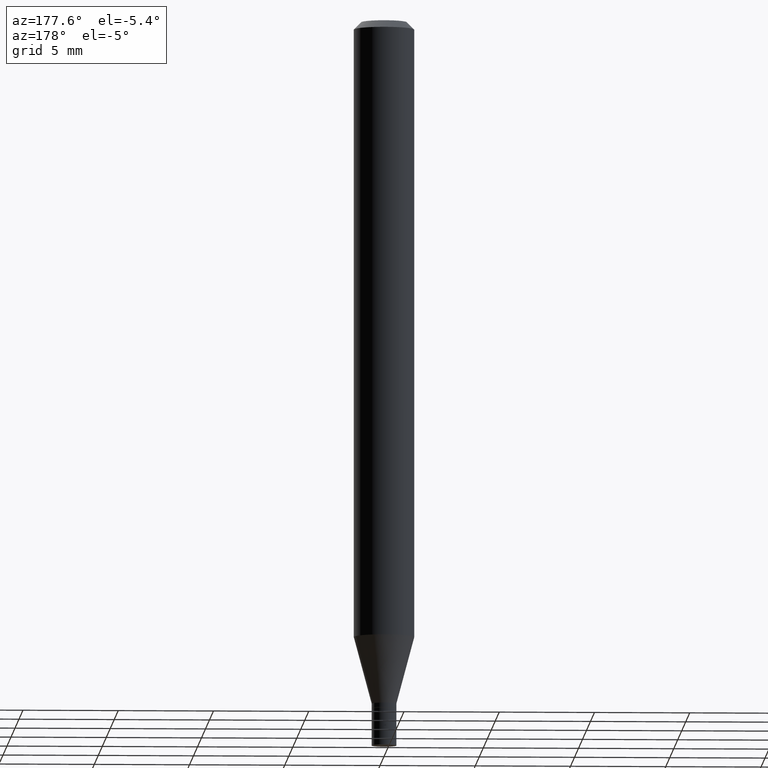
[diagram: clean part render]
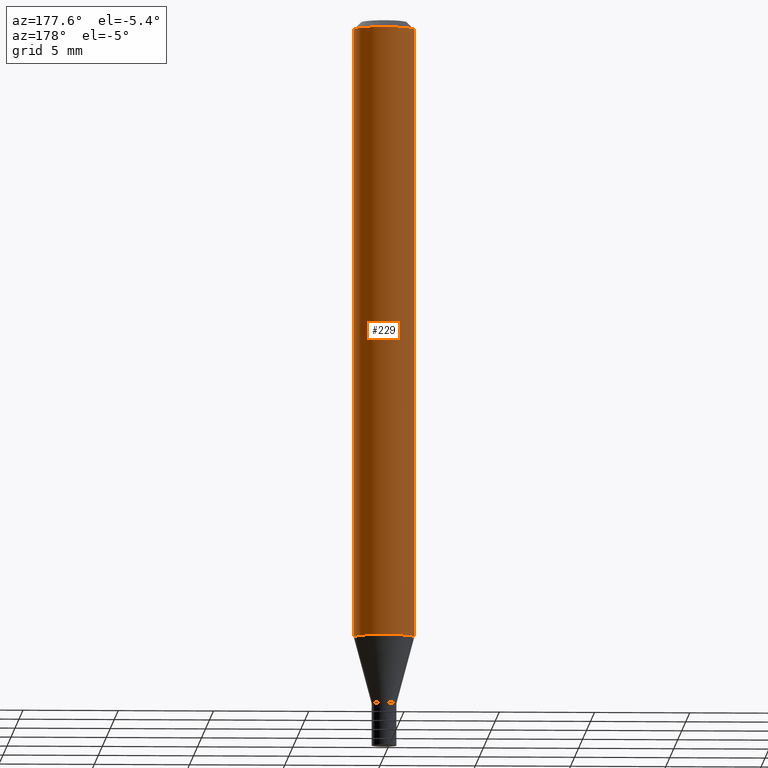
[diagram: same view with one face highlighted and labeled with its STEP entity id]
A machine part, auxiliary view. The second image highlights one B-rep face of the part: STEP entity #229.
In plain terms, the highlighted cylindrical surface (edge-blend (fillet) strip) has radius 1.5875 mm, axis along (-0, 0, 1).
Its self-contained STEP definition (entity closure, byte-faithful):
#15 = VERTEX_POINT ( 'NONE', #395 ) ;
#22 = CARTESIAN_POINT ( 'NONE',  ( 0.06250000000000000000, -4.887774026381831286E-15, -1.274914120119951644 ) ) ;
#45 = FACE_OUTER_BOUND ( 'NONE', #271, .T. ) ;
#71 = DIRECTION ( 'NONE',  ( 1.000000000000000000, -6.982962677686266711E-15, 0.000000000000000000 ) ) ;
#76 = DIRECTION ( 'NONE',  ( 1.000000000000000000, -6.982962677686266711E-15, 4.876176775795935793E-29 ) ) ;
#82 = DIRECTION ( 'NONE',  ( -2.445468806185136877E-29, 3.491481338843145188E-15, 1.000000000000000000 ) ) ;
#111 = CARTESIAN_POINT ( 'NONE',  ( 3.668203209277705088E-31, -5.237222008264718399E-17, -0.01499999999999999944 ) ) ;
#112 = CARTESIAN_POINT ( 'NONE',  ( 0.06250000000000000000, -4.364351673553916694E-16, 3.047610484872459871E-30 ) ) ;
#133 = VECTOR ( 'NONE', #297, 39.37007874015748143 ) ;
#150 = DIRECTION ( 'NONE',  ( -2.445468806185136597E-29, 3.491481338843145583E-15, 1.000000000000000000 ) ) ;
#154 = CARTESIAN_POINT ( 'NONE',  ( -0.06250000000000000000, -4.007249649176377790E-15, -1.274914120119951644 ) ) ;
#157 = DIRECTION ( 'NONE',  ( -2.445468806185136597E-29, 3.491481338843145583E-15, 1.000000000000000000 ) ) ;
#176 = CIRCLE ( 'NONE', #456, 0.06250000000000000000 ) ;
#184 = LINE ( 'NONE', #112, #133 ) ;
#198 = CARTESIAN_POINT ( 'NONE',  ( -0.06250000000000000000, 4.440892098500626162E-16, -3.074334431409316114E-30 ) ) ;
#215 = AXIS2_PLACEMENT_3D ( 'NONE', #111, #157, #71 ) ;
#219 = ORIENTED_EDGE ( 'NONE', *, *, #243, .T. ) ;
#229 = ADVANCED_FACE ( 'NONE', ( #45 ), #270, .T. ) ;
#234 = LINE ( 'NONE', #198, #349 ) ;
#239 = CARTESIAN_POINT ( 'NONE',  ( -0.06250000000000000000, -1.807766329704480929E-15, -0.01499999999999999944 ) ) ;
#240 = ORIENTED_EDGE ( 'NONE', *, *, #442, .T. ) ;
#243 = EDGE_CURVE ( 'NONE', #269, #439, #234, .T. ) ;
#269 = VERTEX_POINT ( 'NONE', #154 ) ;
#270 = CYLINDRICAL_SURFACE ( 'NONE', #368, 0.06250000000000000000 ) ;
#271 = EDGE_LOOP ( 'NONE', ( #240, #219, #402, #381 ) ) ;
#272 = DIRECTION ( 'NONE',  ( 1.000000000000000000, -6.982962677686262766E-15, 0.000000000000000000 ) ) ;
#279 = EDGE_CURVE ( 'NONE', #444, #15, #184, .T. ) ;
#295 = EDGE_CURVE ( 'NONE', #15, #439, #326, .T. ) ;
#297 = DIRECTION ( 'NONE',  ( -2.445468806185136877E-29, 3.491481338843145188E-15, 1.000000000000000000 ) ) ;
#316 = DIRECTION ( 'NONE',  ( -2.445468806185136597E-29, 3.491481338843145583E-15, 1.000000000000000000 ) ) ;
#326 = CIRCLE ( 'NONE', #215, 0.06250000000000000000 ) ;
#349 = VECTOR ( 'NONE', #82, 39.37007874015748143 ) ;
#367 = CARTESIAN_POINT ( 'NONE',  ( 0.000000000000000000, 0.000000000000000000, 0.000000000000000000 ) ) ;
#368 = AXIS2_PLACEMENT_3D ( 'NONE', #367, #150, #76 ) ;
#381 = ORIENTED_EDGE ( 'NONE', *, *, #279, .F. ) ;
#395 = CARTESIAN_POINT ( 'NONE',  ( 0.06250000000000000000, -4.888073874380388472E-16, -0.01499999999999999944 ) ) ;
#402 = ORIENTED_EDGE ( 'NONE', *, *, #295, .F. ) ;
#439 = VERTEX_POINT ( 'NONE', #239 ) ;
#442 = EDGE_CURVE ( 'NONE', #444, #269, #176, .T. ) ;
#444 = VERTEX_POINT ( 'NONE', #22 ) ;
#446 = CARTESIAN_POINT ( 'NONE',  ( 3.117762711318311949E-29, -4.451338859026439617E-15, -1.274914120119951644 ) ) ;
#456 = AXIS2_PLACEMENT_3D ( 'NONE', #446, #316, #272 ) ;